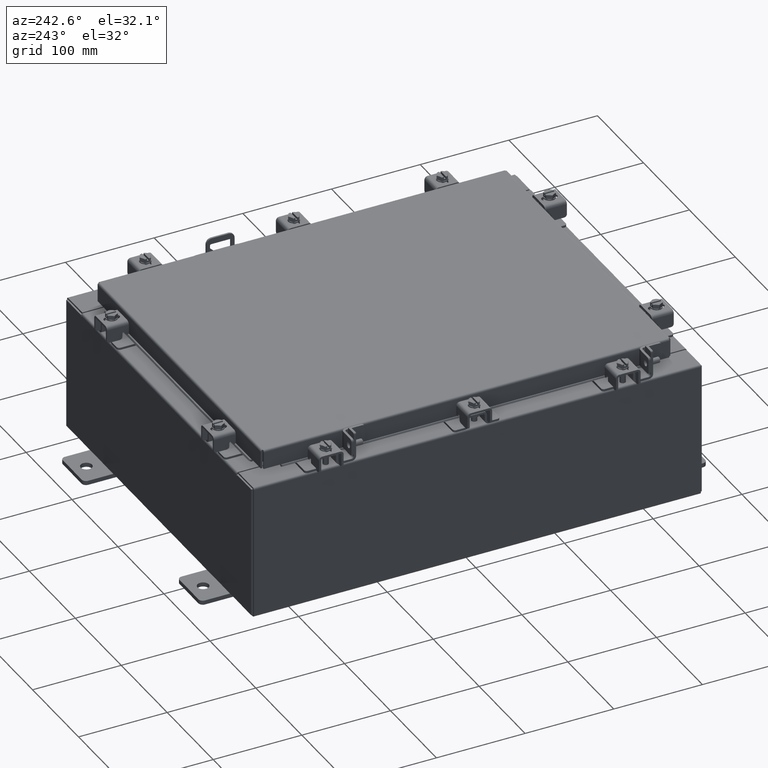
[diagram: clean part render]
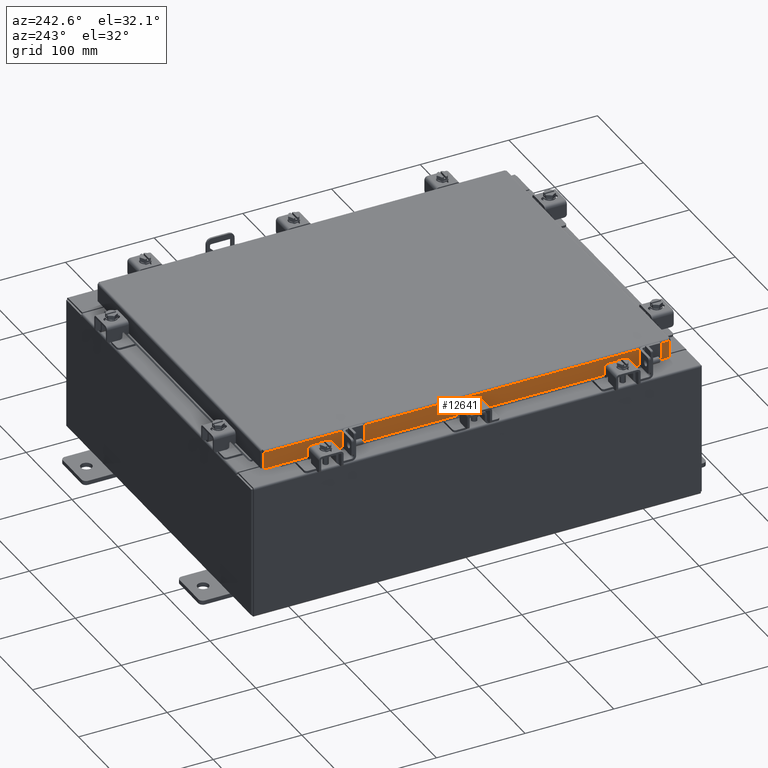
[diagram: same view with one face highlighted and labeled with its STEP entity id]
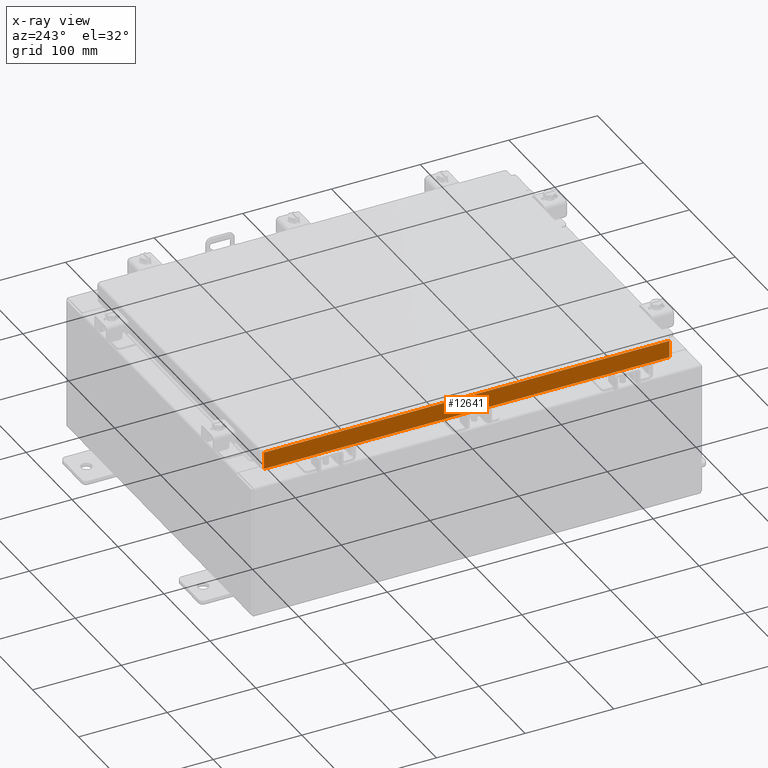
[diagram: x-ray of the same camera — body ghosted, the highlighted face saturated]
A machine part, auxiliary view. The second image highlights one B-rep face of the part: STEP entity #12641.
The next image is the same camera in x-ray: the body ghosted, the highlighted face saturated — about 0% of this face is hidden behind the body in this view.
In plain terms, the highlighted planar face has unit normal (1, 0, -0).
Its self-contained STEP definition (entity closure, byte-faithful):
#191 = CARTESIAN_POINT ( 'NONE',  ( -7.078000000000001200, -8.255157864376261800, -0.8500000000000023100 ) ) ;
#227 = CARTESIAN_POINT ( 'NONE',  ( -7.078000000000003800, -9.005157864376270600, -0.07469999999999978000 ) ) ;
#891 = ORIENTED_EDGE ( 'NONE', *, *, #11751, .F. ) ;
#1111 = ORIENTED_EDGE ( 'NONE', *, *, #13818, .F. ) ;
#1328 = CARTESIAN_POINT ( 'NONE',  ( -7.078000000000003800, -2.397446165233042600E-030, 2.021285296895435800E-014 ) ) ;
#1556 = VERTEX_POINT ( 'NONE', #191 ) ;
#1590 = VECTOR ( 'NONE', #17663, 39.37007874015748100 ) ;
#2704 = CARTESIAN_POINT ( 'NONE',  ( -7.078000000000003800, 9.005157864376265300, -0.08770000000000007000 ) ) ;
#2741 = VERTEX_POINT ( 'NONE', #12871 ) ;
#2968 = CARTESIAN_POINT ( 'NONE',  ( -7.078000000000003800, -9.005157864376270600, -0.08770000000000007000 ) ) ;
#3067 = DIRECTION ( 'NONE',  ( -2.818880942772360100E-015, 0.0000000000000000000, -1.000000000000000000 ) ) ;
#3125 = ORIENTED_EDGE ( 'NONE', *, *, #16923, .F. ) ;
#3175 = LINE ( 'NONE', #9672, #13502 ) ;
#3616 = VECTOR ( 'NONE', #11213, 39.37007874015748100 ) ;
#3727 = CARTESIAN_POINT ( 'NONE',  ( -7.078000000000003800, 9.005157864376265300, 8.309553424256679200E-014 ) ) ;
#3780 = VECTOR ( 'NONE', #14351, 39.37007874015748100 ) ;
#4721 = PLANE ( 'NONE',  #4857 ) ;
#4857 = AXIS2_PLACEMENT_3D ( 'NONE', #1328, #13474, #3067 ) ;
#5178 = FACE_OUTER_BOUND ( 'NONE', #7640, .T. ) ;
#5434 = DIRECTION ( 'NONE',  ( -2.818880942772360100E-015, 6.982962677686265900E-015, -1.000000000000000000 ) ) ;
#6141 = LINE ( 'NONE', #227, #1590 ) ;
#6419 = VERTEX_POINT ( 'NONE', #10626 ) ;
#6975 = ORIENTED_EDGE ( 'NONE', *, *, #12183, .T. ) ;
#7640 = EDGE_LOOP ( 'NONE', ( #13200, #6975, #3125, #891, #1111, #16587 ) ) ;
#8092 = VECTOR ( 'NONE', #13684, 39.37007874015748100 ) ;
#8192 = LINE ( 'NONE', #9447, #3616 ) ;
#9447 = CARTESIAN_POINT ( 'NONE',  ( -7.078000000000001200, -8.255157864376263500, -0.8500000000000023100 ) ) ;
#9672 = CARTESIAN_POINT ( 'NONE',  ( -7.078000000000005600, -9.094000000000003000, -0.8499999999999996400 ) ) ;
#10626 = CARTESIAN_POINT ( 'NONE',  ( -7.078000000000005600, 9.005157864376270600, -0.8499999999999975400 ) ) ;
#11213 = DIRECTION ( 'NONE',  ( -0.0000000000000000000, 1.000000000000000000, -0.0000000000000000000 ) ) ;
#11751 = EDGE_CURVE ( 'NONE', #1556, #2741, #8192, .T. ) ;
#12020 = VERTEX_POINT ( 'NONE', #15422 ) ;
#12183 = EDGE_CURVE ( 'NONE', #13466, #6419, #15035, .T. ) ;
#12641 = ADVANCED_FACE ( 'NONE', ( #5178 ), #4721, .F. ) ;
#12871 = CARTESIAN_POINT ( 'NONE',  ( -7.078000000000001200, 8.255157864376267100, -0.8500000000000023100 ) ) ;
#13200 = ORIENTED_EDGE ( 'NONE', *, *, #21801, .F. ) ;
#13466 = VERTEX_POINT ( 'NONE', #2704 ) ;
#13474 = DIRECTION ( 'NONE',  ( 1.000000000000000000, 3.387180227794633400E-031, -2.818880942772360100E-015 ) ) ;
#13502 = VECTOR ( 'NONE', #20171, 39.37007874015748100 ) ;
#13684 = DIRECTION ( 'NONE',  ( 4.379057701015054300E-047, 1.000000000000000000, 1.201604571657912400E-016 ) ) ;
#13818 = EDGE_CURVE ( 'NONE', #12020, #1556, #13866, .T. ) ;
#13866 = LINE ( 'NONE', #22365, #8092 ) ;
#14351 = DIRECTION ( 'NONE',  ( 3.387180227794633400E-031, -1.000000000000000000, -9.232666117091638000E-046 ) ) ;
#14475 = VECTOR ( 'NONE', #5434, 39.37007874015748100 ) ;
#15035 = LINE ( 'NONE', #3727, #14475 ) ;
#15182 = VERTEX_POINT ( 'NONE', #2968 ) ;
#15422 = CARTESIAN_POINT ( 'NONE',  ( -7.078000000000005600, -9.005157864376265300, -0.8499999999999996400 ) ) ;
#15984 = EDGE_CURVE ( 'NONE', #15182, #12020, #6141, .T. ) ;
#16131 = CARTESIAN_POINT ( 'NONE',  ( -7.078000000000003800, -9.094000000000003000, -0.08770000000000007000 ) ) ;
#16587 = ORIENTED_EDGE ( 'NONE', *, *, #15984, .F. ) ;
#16923 = EDGE_CURVE ( 'NONE', #2741, #6419, #3175, .T. ) ;
#17663 = DIRECTION ( 'NONE',  ( -2.818880942772360100E-015, 6.982962677686265900E-015, -1.000000000000000000 ) ) ;
#18228 = LINE ( 'NONE', #16131, #3780 ) ;
#20171 = DIRECTION ( 'NONE',  ( 4.379057701015054300E-047, 1.000000000000000000, 1.201604571657912400E-016 ) ) ;
#21801 = EDGE_CURVE ( 'NONE', #13466, #15182, #18228, .T. ) ;
#22365 = CARTESIAN_POINT ( 'NONE',  ( -7.078000000000005600, -9.094000000000003000, -0.8499999999999996400 ) ) ;